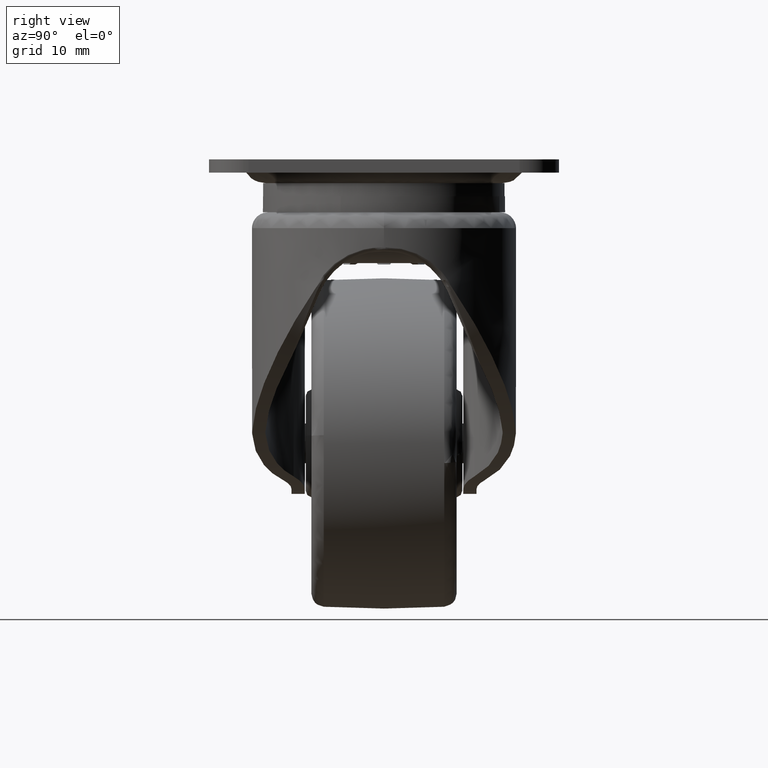
[diagram: clean part render]
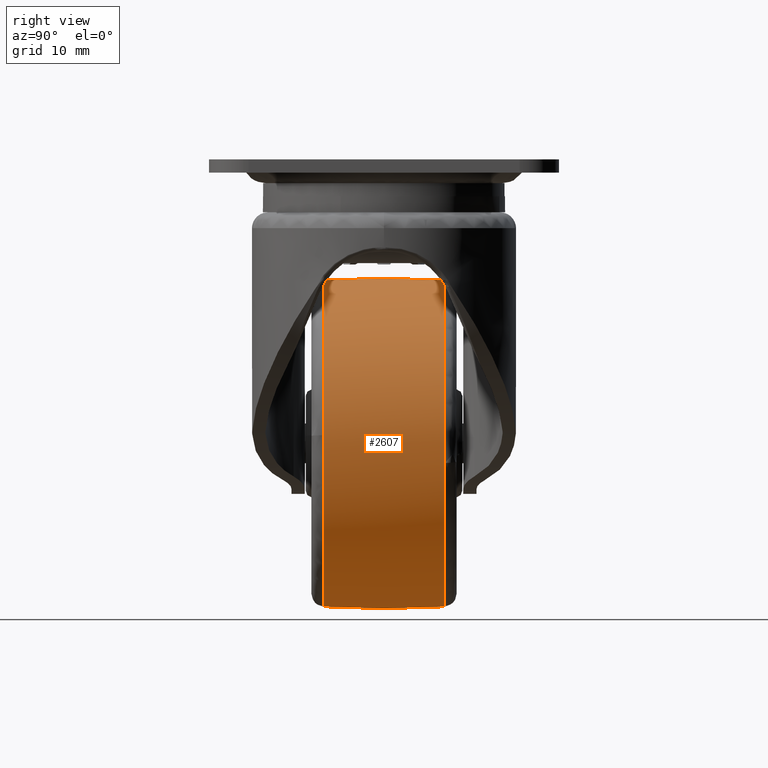
[diagram: same view with one face highlighted and labeled with its STEP entity id]
A machine part, right view. The second image highlights one B-rep face of the part: STEP entity #2607.
In plain terms, the highlighted face is a freeform B-spline surface patch.
Its self-contained STEP definition (entity closure, byte-faithful):
#1662=CARTESIAN_POINT('',(7.561386967853990,-9.121626459040575,-19.462321642186740));
#1663=VERTEX_POINT('',#1662);
#1677=CARTESIAN_POINT('',(0.0,-9.121626578029773,-18.277603784300371));
#1678=VERTEX_POINT('',#1677);
#1679=CARTESIAN_POINT('',(7.561386967853990,-9.121626459040575,-19.462321642186748));
#1680=CARTESIAN_POINT('',(3.873504262290430,-9.121626578029773,-18.277603784300375));
#1681=CARTESIAN_POINT('',(0.0,-9.121626578029773,-18.277603784300371));
#1689=(BOUNDED_CURVE()B_SPLINE_CURVE(2,(#1679,#1680,#1681),.UNSPECIFIED.,.F.,.U.)B_SPLINE_CURVE_WITH_KNOTS((3,3),(0.447981230931887,0.500000000000000),.UNSPECIFIED.)CURVE()GEOMETRIC_REPRESENTATION_ITEM()RATIONAL_B_SPLINE_CURVE((0.903474205174129,0.939056221155707,1.0))REPRESENTATION_ITEM(''));
#1690=EDGE_CURVE('',#1663,#1678,#1689,.T.);
#1692=CARTESIAN_POINT('',(-24.557048597239341,-9.121634293194809,-40.145492057110388));
#1693=VERTEX_POINT('',#1692);
#1707=CARTESIAN_POINT('',(0.0,-9.121621621621589,-67.722396517661792));
#1708=VERTEX_POINT('',#1707);
#1709=CARTESIAN_POINT('',(-24.557048597239337,-9.121634293194809,-40.145492057110381));
#1710=CARTESIAN_POINT('',(-24.722395770564820,-9.121633966383811,-41.567957210385920));
#1711=CARTESIAN_POINT('',(-24.722395792775419,-9.121633599383870,-43.000000084260677));
#1712=CARTESIAN_POINT('',(-24.722396176213106,-9.121627263597260,-67.722396557351729));
#1713=CARTESIAN_POINT('',(0.0,-9.121621621621589,-67.722396517661792));
#1721=(BOUNDED_CURVE()B_SPLINE_CURVE(2,(#1709,#1710,#1711,#1712,#1713),.UNSPECIFIED.,.F.,.U.)B_SPLINE_CURVE_WITH_KNOTS((3,2,3),(0.730000306038309,0.750000000000000,1.0),.UNSPECIFIED.)CURVE()GEOMETRIC_REPRESENTATION_ITEM()RATIONAL_B_SPLINE_CURVE((0.956886720549122,0.976568901041105,1.0,0.707106781186548,1.0))REPRESENTATION_ITEM(''));
#1722=EDGE_CURVE('',#1693,#1708,#1721,.T.);
#1724=CARTESIAN_POINT('',(24.691170975158709,-9.121624219967604,-41.757840047341617));
#1725=VERTEX_POINT('',#1724);
#1726=CARTESIAN_POINT('',(0.0,-9.121621621621589,-67.722396517661792));
#1727=CARTESIAN_POINT('',(24.722396517661789,-9.121621621621589,-67.722396517661792));
#1728=CARTESIAN_POINT('',(24.722396517661799,-9.121624099825681,-43.000000150981087));
#1729=CARTESIAN_POINT('',(24.722396517661803,-9.121624162122867,-42.378527623776797));
#1730=CARTESIAN_POINT('',(24.691170975158713,-9.121624219967604,-41.757840047341617));
#1738=(BOUNDED_CURVE()B_SPLINE_CURVE(2,(#1726,#1727,#1728,#1729,#1730),.UNSPECIFIED.,.F.,.U.)B_SPLINE_CURVE_WITH_KNOTS((3,2,3),(0.0,0.250000000000000,0.258796049388946),.UNSPECIFIED.)CURVE()GEOMETRIC_REPRESENTATION_ITEM()RATIONAL_B_SPLINE_CURVE((1.0,0.707106781186548,1.0,0.989694787126518,0.980114735544227))REPRESENTATION_ITEM(''));
#1739=EDGE_CURVE('',#1708,#1725,#1738,.T.);
#1822=CARTESIAN_POINT('',(24.691170975158716,-9.121624219967604,-41.757840047341617));
#1823=CARTESIAN_POINT('',(23.832491752096519,-9.121625935308250,-24.689350210244726));
#1824=CARTESIAN_POINT('',(7.561386967853990,-9.121626459040575,-19.462321642186737));
#1832=(BOUNDED_CURVE()B_SPLINE_CURVE(2,(#1822,#1823,#1824),.UNSPECIFIED.,.F.,.U.)B_SPLINE_CURVE_WITH_KNOTS((3,3),(0.258796049388946,0.447981230931887),.UNSPECIFIED.)CURVE()GEOMETRIC_REPRESENTATION_ITEM()RATIONAL_B_SPLINE_CURVE((0.980114735544227,0.774067256995015,0.903474205174129))REPRESENTATION_ITEM(''));
#1833=EDGE_CURVE('',#1725,#1663,#1832,.T.);
#1868=CARTESIAN_POINT('',(24.544444815150861,9.121622620168830,-45.960931774224399));
#1869=VERTEX_POINT('',#1868);
#1870=CARTESIAN_POINT('',(0.0,9.121623894445101,-18.277603620806701));
#1871=VERTEX_POINT('',#1870);
#1872=CARTESIAN_POINT('',(24.544444815150865,9.121622620168830,-45.960931774224399));
#1873=CARTESIAN_POINT('',(24.722396517661799,9.121622689735146,-44.485813361565306));
#1874=CARTESIAN_POINT('',(24.722396517661799,9.121622758033364,-43.000000069234247));
#1875=CARTESIAN_POINT('',(24.722396517661789,9.121623894445101,-18.277603620806708));
#1876=CARTESIAN_POINT('',(0.0,9.121623894445101,-18.277603620806701));
#1884=(BOUNDED_CURVE()B_SPLINE_CURVE(2,(#1872,#1873,#1874,#1875,#1876),.UNSPECIFIED.,.F.,.U.)B_SPLINE_CURVE_WITH_KNOTS((3,2,3),(0.229267596699398,0.250000000000000,0.500000000000000),.UNSPECIFIED.)CURVE()GEOMETRIC_REPRESENTATION_ITEM()RATIONAL_B_SPLINE_CURVE((0.955449598528543,0.975710478654192,1.0,0.707106781186548,1.0))REPRESENTATION_ITEM(''));
#1885=EDGE_CURVE('',#1869,#1871,#1884,.T.);
#1934=CARTESIAN_POINT('',(-24.673611907771988,9.121631621860580,-41.447667916857938));
#1935=VERTEX_POINT('',#1934);
#1949=CARTESIAN_POINT('',(-24.557048732616071,9.121631869949166,-40.145491943116667));
#1950=VERTEX_POINT('',#1949);
#1951=CARTESIAN_POINT('',(-24.557048732616071,9.121631869949166,-40.145491943116667));
#1952=CARTESIAN_POINT('',(-24.632551927697264,9.121631749254613,-40.795038352630847));
#1953=CARTESIAN_POINT('',(-24.673611907771988,9.121631621860580,-41.447667916857938));
#1961=(BOUNDED_CURVE()B_SPLINE_CURVE(2,(#1951,#1952,#1953),.UNSPECIFIED.,.F.,.U.)B_SPLINE_CURVE_WITH_KNOTS((3,3),(0.730000305370509,0.739031910515455),.UNSPECIFIED.)CURVE()GEOMETRIC_REPRESENTATION_ITEM()RATIONAL_B_SPLINE_CURVE((0.956886719234726,0.965774939314748,0.975427679973266))REPRESENTATION_ITEM(''));
#1962=EDGE_CURVE('',#1950,#1935,#1961,.T.);
#2003=CARTESIAN_POINT('',(0.0,9.121621621621630,-67.722396517661792));
#2004=VERTEX_POINT('',#2003);
#2005=CARTESIAN_POINT('',(0.0,9.121621621621630,-67.722396517661792));
#2006=CARTESIAN_POINT('',(21.919239359842333,9.121621621621632,-67.722396517661792));
#2007=CARTESIAN_POINT('',(24.544444815150861,9.121622620168830,-45.960931774224399));
#2015=(BOUNDED_CURVE()B_SPLINE_CURVE(2,(#2005,#2006,#2007),.UNSPECIFIED.,.F.,.U.)B_SPLINE_CURVE_WITH_KNOTS((3,3),(0.0,0.229267596699398),.UNSPECIFIED.)CURVE()GEOMETRIC_REPRESENTATION_ITEM()RATIONAL_B_SPLINE_CURVE((1.0,0.731396302532356,0.955449598528543))REPRESENTATION_ITEM(''));
#2016=EDGE_CURVE('',#2004,#1869,#2015,.T.);
#2018=CARTESIAN_POINT('',(-24.673611907771988,9.121631621860580,-41.447667916857938));
#2019=CARTESIAN_POINT('',(-24.722395921646235,9.121631469852337,-42.223067442948462));
#2020=CARTESIAN_POINT('',(-24.722395931391990,9.121631308819000,-43.000000068147941));
#2021=CARTESIAN_POINT('',(-24.722396241506708,9.121626184655231,-67.722396549762024));
#2022=CARTESIAN_POINT('',(0.0,9.121621621621630,-67.722396517661792));
#2030=(BOUNDED_CURVE()B_SPLINE_CURVE(2,(#2018,#2019,#2020,#2021,#2022),.UNSPECIFIED.,.F.,.U.)B_SPLINE_CURVE_WITH_KNOTS((3,2,3),(0.739031910515455,0.750000000000000,1.0),.UNSPECIFIED.)CURVE()GEOMETRIC_REPRESENTATION_ITEM()RATIONAL_B_SPLINE_CURVE((0.975427679973266,0.987150083866551,1.0,0.707106781186548,1.0))REPRESENTATION_ITEM(''));
#2031=EDGE_CURVE('',#1935,#2004,#2030,.T.);
#2536=CARTESIAN_POINT('',(-24.499261751210518,-10.030940992342105,-40.152164881218859));
#2537=CARTESIAN_POINT('',(-25.167068610948501,-2.432914E-014,-40.074537896086113));
#2538=CARTESIAN_POINT('',(-24.499261751210533,10.030940992342055,-40.152164881218859));
#2539=CARTESIAN_POINT('',(-24.664224926360241,-10.030940992342105,-41.571304627284498));
#2540=CARTESIAN_POINT('',(-25.336528392611825,-2.582536E-014,-41.532360899915709));
#2541=CARTESIAN_POINT('',(-24.664224926360252,10.030940992342055,-41.571304627284498));
#2542=CARTESIAN_POINT('',(-24.664224926360241,-10.030940992342108,-43.000000000000007));
#2543=CARTESIAN_POINT('',(-25.336528392611825,-2.813026E-014,-43.000000000000007));
#2544=CARTESIAN_POINT('',(-24.664224926360241,10.030940992342050,-43.000000000000007));
#2545=CARTESIAN_POINT('',(-24.664224926360244,-10.030940992342110,-67.664224926360234));
#2546=CARTESIAN_POINT('',(-25.336528392611825,-3.017959E-014,-68.336528392611825));
#2547=CARTESIAN_POINT('',(-24.664224926360244,10.030940992342048,-67.664224926360234));
#2548=CARTESIAN_POINT('',(0.0,-10.030940992342108,-67.664224926360234));
#2549=CARTESIAN_POINT('',(0.0,-2.813026E-014,-68.336528392611825));
#2550=CARTESIAN_POINT('',(0.0,10.030940992342050,-67.664224926360234));
#2551=CARTESIAN_POINT('',(24.664224926360227,-10.030940992342110,-67.664224926360234));
#2552=CARTESIAN_POINT('',(25.336528392611825,-3.017959E-014,-68.336528392611825));
#2553=CARTESIAN_POINT('',(24.664224926360244,10.030940992342048,-67.664224926360234));
#2554=CARTESIAN_POINT('',(24.664224926360241,-10.030940992342108,-43.000000000000007));
#2555=CARTESIAN_POINT('',(25.336528392611825,-2.813026E-014,-43.000000000000007));
#2556=CARTESIAN_POINT('',(24.664224926360241,10.030940992342050,-43.000000000000007));
#2557=CARTESIAN_POINT('',(24.664224926360244,-10.030940992342110,-18.335775073639752));
#2558=CARTESIAN_POINT('',(25.336528392611825,-3.017959E-014,-17.663471607388175));
#2559=CARTESIAN_POINT('',(24.664224926360244,10.030940992342048,-18.335775073639752));
#2560=CARTESIAN_POINT('',(0.0,-10.030940992342108,-18.335775073639752));
#2561=CARTESIAN_POINT('',(0.0,-2.813026E-014,-17.663471607388168));
#2562=CARTESIAN_POINT('',(0.0,10.030940992342050,-18.335775073639752));
#2570=(BOUNDED_SURFACE()B_SPLINE_SURFACE(2,2,((#2536,#2539,#2542,#2545,#2548,#2551,#2554,#2557,#2560),(#2537,#2540,#2543,#2546,#2549,#2552,#2555,#2558,#2561),(#2538,#2541,#2544,#2547,#2550,#2553,#2556,#2559,#2562)),.UNSPECIFIED.,.F.,.F.,.U.)B_SPLINE_SURFACE_WITH_KNOTS((3,3),(3,2,2,2,3),(0.0,20.084361411123592),(0.0,3.313707807691297,44.735064045000797,86.156420282310307,127.577776519619800),.UNSPECIFIED.)GEOMETRIC_REPRESENTATION_ITEM()RATIONAL_B_SPLINE_SURFACE(((0.878128461365174,0.896190896982613,0.917693795672736,0.648907505973014,0.917693795672736,0.648907505973014,0.917693795672736,0.648907505973014,0.917693795672736),(0.876162770373306,0.894184773219749,0.915639537660597,0.647454926202324,0.915639537660597,0.647454926202324,0.915639537660597,0.647454926202324,0.915639537660597),(0.878128461365174,0.896190896982613,0.917693795672736,0.648907505973014,0.917693795672736,0.648907505973014,0.917693795672736,0.648907505973014,0.917693795672736)))REPRESENTATION_ITEM('')SURFACE());
#2571=ORIENTED_EDGE('',*,*,#1722,.F.);
#2572=CARTESIAN_POINT('',(-24.557048597239341,-9.121634293194809,-40.145492057110388));
#2573=CARTESIAN_POINT('',(-25.109054862429048,-0.000001216119988,-40.081325863636742));
#2574=CARTESIAN_POINT('',(-24.557048732616074,9.121631869949166,-40.145491943116674));
#2582=(BOUNDED_CURVE()B_SPLINE_CURVE(2,(#2572,#2573,#2574),.UNSPECIFIED.,.F.,.U.)B_SPLINE_CURVE_WITH_KNOTS((3,3),(0.449531568453340,0.550468418114401),.UNSPECIFIED.)CURVE()GEOMETRIC_REPRESENTATION_ITEM()RATIONAL_B_SPLINE_CURVE((0.877958024617313,0.876333192281789,0.877958024184861))REPRESENTATION_ITEM(''));
#2583=EDGE_CURVE('',#1693,#1950,#2582,.T.);
#2584=ORIENTED_EDGE('',*,*,#2583,.T.);
#2585=ORIENTED_EDGE('',*,*,#1962,.T.);
#2586=ORIENTED_EDGE('',*,*,#2031,.T.);
#2587=ORIENTED_EDGE('',*,*,#2016,.T.);
#2588=ORIENTED_EDGE('',*,*,#1885,.T.);
#2589=CARTESIAN_POINT('',(0.0,-9.121626578029773,-18.277603784300371));
#2590=CARTESIAN_POINT('',(0.0,-0.000001346772650,-17.721881586103581));
#2591=CARTESIAN_POINT('',(0.0,9.121623894445103,-18.277603620806655));
#2599=(BOUNDED_CURVE()B_SPLINE_CURVE(2,(#2589,#2590,#2591),.UNSPECIFIED.,.F.,.U.)B_SPLINE_CURVE_WITH_KNOTS((3,3),(0.449531611219193,0.550468373905466),.UNSPECIFIED.)CURVE()GEOMETRIC_REPRESENTATION_ITEM()RATIONAL_B_SPLINE_CURVE((0.917515686088710,0.915817647494868,0.917515685588221))REPRESENTATION_ITEM(''));
#2600=EDGE_CURVE('',#1678,#1871,#2599,.T.);
#2601=ORIENTED_EDGE('',*,*,#2600,.F.);
#2602=ORIENTED_EDGE('',*,*,#1690,.F.);
#2603=ORIENTED_EDGE('',*,*,#1833,.F.);
#2604=ORIENTED_EDGE('',*,*,#1739,.F.);
#2605=EDGE_LOOP('',(#2571,#2584,#2585,#2586,#2587,#2588,#2601,#2602,#2603,#2604));
#2606=FACE_OUTER_BOUND('',#2605,.T.);
#2607=ADVANCED_FACE('',(#2606),#2570,.T.);